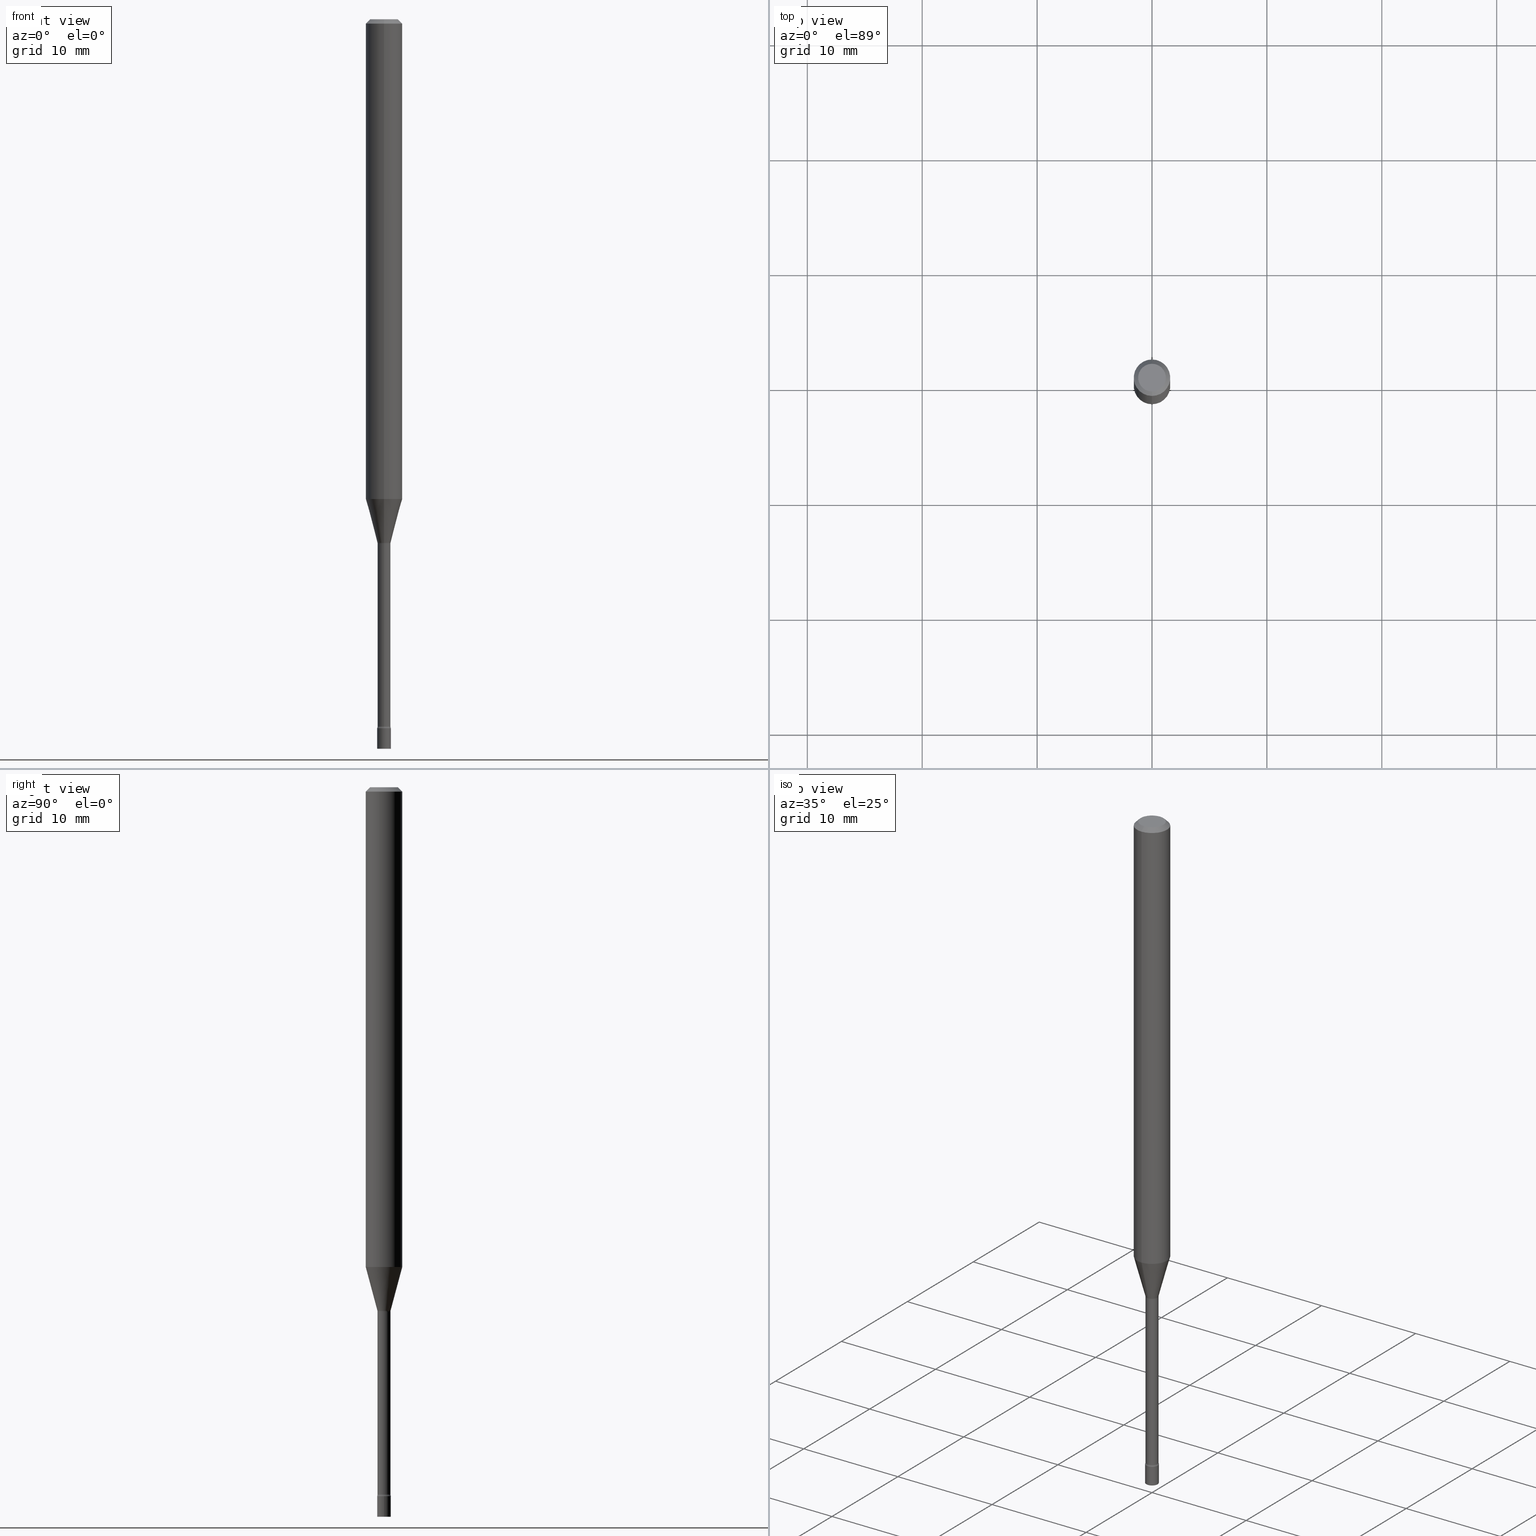
[diagram: canonical four-view strip — front | top / right | iso, engineering-drawing reading convention]
A machine part, canonical four-view strip (front | top / right | iso — engineering-drawing reading convention). The complete STEP part file that produces these views, byte-faithful:
ISO-10303-21;
HEADER;
FILE_DESCRIPTION (( 'STEP AP203' ),
    '1' );
FILE_NAME ('09659.STEP',
    '2024-03-09T00:29:46',
    ( '' ),
    ( '' ),
    'SwSTEP 2.0',
    'SolidWorks 2023',
    '' );
FILE_SCHEMA (( 'CONFIG_CONTROL_DESIGN' ));
ENDSEC;

DATA;
#1 = COORDINATED_UNIVERSAL_TIME_OFFSET ( 5, 0, .BEHIND. ) ;
#2 = VECTOR ( 'NONE', #230, 39.37007874015748143 ) ;
#3 = ADVANCED_FACE ( 'NONE', ( #182 ), #135, .F. ) ;
#4 = DIRECTION ( 'NONE',  ( -6.982962677686265922E-15, -1.000000000000000000, 4.370956789862821150E-15 ) ) ;
#5 = CARTESIAN_POINT ( 'NONE',  ( 1.640996229256866630E-16, 0.02349999999999152073, -2.429000000000000270 ) ) ;
#6 = LINE ( 'NONE', #171, #2 ) ;
#7 = ADVANCED_FACE ( 'NONE', ( #423 ), #511, .F. ) ;
#8 = DIRECTION ( 'NONE',  ( -2.445459864664737566E-29, 3.491494143609276784E-15, 1.000000000000000000 ) ) ;
#9 = CIRCLE ( 'NONE', #320, 0.02210000000000007098 ) ;
#10 = CONICAL_SURFACE ( 'NONE', #513, 0.02261111260566398690, 0.2617993877991501295 ) ;
#11 = LINE ( 'NONE', #492, #235 ) ;
#12 = EDGE_CURVE ( 'NONE', #20, #349, #79, .T. ) ;
#13 = CYLINDRICAL_SURFACE ( 'NONE', #325, 0.02210000000000003628 ) ;
#14 = DIRECTION ( 'NONE',  ( -6.982962677686265922E-15, -1.000000000000000000, 4.370956789862821150E-15 ) ) ;
#15 = EDGE_CURVE ( 'NONE', #486, #99, #35, .T. ) ;
#16 = ORIENTED_EDGE ( 'NONE', *, *, #15, .T. ) ;
#17 = PRODUCT_DEFINITION_FORMATION_WITH_SPECIFIED_SOURCE ( 'ANY', '', #117, .NOT_KNOWN. ) ;
#18 = FACE_OUTER_BOUND ( 'NONE', #132, .T. ) ;
#19 = ORIENTED_EDGE ( 'NONE', *, *, #440, .F. ) ;
#20 = VERTEX_POINT ( 'NONE', #520 ) ;
#21 = ORIENTED_EDGE ( 'NONE', *, *, #484, .F. ) ;
#22 = ADVANCED_FACE ( 'NONE', ( #73 ), #153, .T. ) ;
#23 = ORIENTED_EDGE ( 'NONE', *, *, #228, .T. ) ;
#24 = ORIENTED_EDGE ( 'NONE', *, *, #330, .T. ) ;
#25 = AXIS2_PLACEMENT_3D ( 'NONE', #260, #418, #94 ) ;
#26 = EDGE_LOOP ( 'NONE', ( #98, #220 ) ) ;
#27 = CARTESIAN_POINT ( 'NONE',  ( 4.384935746752060806E-29, -6.260571968939970846E-15, -1.793092501787273196 ) ) ;
#28 = ORIENTED_EDGE ( 'NONE', *, *, #224, .T. ) ;
#29 = CARTESIAN_POINT ( 'NONE',  ( 7.070632131136643894E-46, -1.009506270546119456E-31, -2.891330270147777573E-17 ) ) ;
#30 = MECHANICAL_CONTEXT ( 'NONE', #395, 'mechanical' ) ;
#31 = ORIENTED_EDGE ( 'NONE', *, *, #454, .T. ) ;
#32 = CIRCLE ( 'NONE', #424, 0.02350000000000000352 ) ;
#33 = CALENDAR_DATE ( 2024, 8, 3 ) ;
#34 = AXIS2_PLACEMENT_3D ( 'NONE', #29, #488, #165 ) ;
#35 = LINE ( 'NONE', #352, #380 ) ;
#36 = FACE_OUTER_BOUND ( 'NONE', #335, .T. ) ;
#37 = CARTESIAN_POINT ( 'NONE',  ( -1.543234751768225325E-16, -0.02210000000000627435, -1.796974787463811118 ) ) ;
#38 = EDGE_CURVE ( 'NONE', #419, #172, #105, .T. ) ;
#39 = SHAPE_DEFINITION_REPRESENTATION ( #279, #376 ) ;
#40 = CARTESIAN_POINT ( 'NONE',  ( 6.113672015462842613E-29, -8.728703347107864943E-15, -2.500000000000000000 ) ) ;
#41 = ORGANIZATION ( 'UNSPECIFIED', 'UNSPECIFIED', '' ) ;
#42 = DIRECTION ( 'NONE',  ( -6.982962677686265922E-15, -1.000000000000000000, 3.491494143609276784E-15 ) ) ;
#43 = CARTESIAN_POINT ( 'NONE',  ( 5.924547833782153992E-29, -8.458746088650004538E-15, -2.422672283192177645 ) ) ;
#44 = PERSON_AND_ORGANIZATION_ROLE ( 'design_supplier' ) ;
#45 = DIRECTION ( 'NONE',  ( 1.000000000000000000, -6.982962677686265922E-15, 4.876176775795935793E-29 ) ) ;
#46 = CARTESIAN_POINT ( 'NONE',  ( 5.940043730223697314E-29, -8.480808172050001970E-15, -2.429000000000000270 ) ) ;
#47 = CARTESIAN_POINT ( 'NONE',  ( 0.02350000000000000352, -1.640996229256272766E-16, 1.145901542312045115E-30 ) ) ;
#48 = ADVANCED_FACE ( 'NONE', ( #361 ), #283, .F. ) ;
#49 = LINE ( 'NONE', #47, #393 ) ;
#50 = AXIS2_PLACEMENT_3D ( 'NONE', #446, #8, #173 ) ;
#51 = CC_DESIGN_APPROVAL ( #377, ( #445 ) ) ;
#52 = DIRECTION ( 'NONE',  ( -6.982962677686265922E-15, -1.000000000000000000, 3.491494143609276784E-15 ) ) ;
#53 = DIRECTION ( 'NONE',  ( -6.982962677686265922E-15, -1.000000000000000000, 3.491494143609276784E-15 ) ) ;
#54 = DIRECTION ( 'NONE',  ( 2.445459864664737566E-29, -3.491494143609276784E-15, -1.000000000000000000 ) ) ;
#55 = AXIS2_PLACEMENT_3D ( 'NONE', #274, #280, #362 ) ;
#56 = VERTEX_POINT ( 'NONE', #238 ) ;
#57 = AXIS2_PLACEMENT_3D ( 'NONE', #430, #149, #268 ) ;
#58 = EDGE_CURVE ( 'NONE', #378, #96, #504, .T. ) ;
#59 = EDGE_LOOP ( 'NONE', ( #133, #259, #267, #294 ) ) ;
#60 = CARTESIAN_POINT ( 'NONE',  ( 4.394445788243915811E-29, -6.274103936801524027E-15, -1.796974787463811118 ) ) ;
#61 = DIRECTION ( 'NONE',  ( -6.982962677686265133E-15, -1.000000000000000000, 0.000000000000000000 ) ) ;
#62 = DIRECTION ( 'NONE',  ( -6.982962677686265922E-15, -1.000000000000000000, 3.491494143609276784E-15 ) ) ;
#63 = VERTEX_POINT ( 'NONE', #438 ) ;
#64 = DIRECTION ( 'NONE',  ( -2.445459864664737566E-29, 3.491494143609276784E-15, 1.000000000000000000 ) ) ;
#65 = ADVANCED_FACE ( 'NONE', ( #203 ), #318, .T. ) ;
#66 = ORIENTED_EDGE ( 'NONE', *, *, #397, .T. ) ;
#67 = CARTESIAN_POINT ( 'NONE',  ( 1.669775429036828812E-16, 0.02349999999999151726, -2.429000000000000270 ) ) ;
#68 = DIMENSIONAL_EXPONENTS ( 1.000000000000000000, 0.000000000000000000, 0.000000000000000000, 0.000000000000000000, 0.000000000000000000, 0.000000000000000000, 0.000000000000000000 ) ;
#69 = ORIENTED_EDGE ( 'NONE', *, *, #345, .T. ) ;
#70 = AXIS2_PLACEMENT_3D ( 'NONE', #100, #144, #139 ) ;
#71 = COORDINATED_UNIVERSAL_TIME_OFFSET ( 5, 0, .BEHIND. ) ;
#72 = AXIS2_PLACEMENT_3D ( 'NONE', #307, #470, #104 ) ;
#73 = FACE_OUTER_BOUND ( 'NONE', #502, .T. ) ;
#74 = EDGE_CURVE ( 'NONE', #141, #101, #95, .T. ) ;
#75 = CARTESIAN_POINT ( 'NONE',  ( 0.02350000000000000352, -8.892802970033491011E-15, -2.500000000000000000 ) ) ;
#76 = APPROVAL_ROLE ( '' ) ;
#77 = CARTESIAN_POINT ( 'NONE',  ( -0.02350000000000000352, 1.669775429036235687E-16, -1.155949746209903035E-30 ) ) ;
#78 = DIRECTION ( 'NONE',  ( -6.982962677686265922E-15, -1.000000000000000000, 3.491494143609276784E-15 ) ) ;
#79 = CIRCLE ( 'NONE', #460, 0.01499999999999999424 ) ;
#80 = CIRCLE ( 'NONE', #411, 0.02210000000000000159 ) ;
#81 = CARTESIAN_POINT ( 'NONE',  ( 4.440892098500625669E-16, 0.06250000000000000000, -2.182183839755797990E-16 ) ) ;
#82 = APPROVAL ( #321, 'UNSPECIFIED' ) ;
#83 = DIRECTION ( 'NONE',  ( 6.982962677686265922E-15, 1.000000000000000000, -3.491494143609276390E-15 ) ) ;
#84 = DIRECTION ( 'NONE',  ( 1.000000000000000000, -6.982962677686228056E-15, 0.000000000000000000 ) ) ;
#85 = CARTESIAN_POINT ( 'NONE',  ( -0.02350000000000000352, -8.437778216675308581E-15, -2.500000000000000000 ) ) ;
#86 = CARTESIAN_POINT ( 'NONE',  ( -4.364351673553916201E-16, -0.06250000000000000000, 2.182183839755797990E-16 ) ) ;
#87 = AXIS2_PLACEMENT_3D ( 'NONE', #60, #186, #482 ) ;
#88 = DIRECTION ( 'NONE',  ( -4.851104656540964275E-15, -0.7071067811865500152, -0.7071067811865450192 ) ) ;
#89 = DIRECTION ( 'NONE',  ( 1.000000000000000000, -7.105427357601001070E-15, 4.926315665355240651E-29 ) ) ;
#90 = ORIENTED_EDGE ( 'NONE', *, *, #134, .T. ) ;
#91 = ADVANCED_FACE ( 'NONE', ( #195 ), #485, .T. ) ;
#92 = DIRECTION ( 'NONE',  ( -2.445459864664737566E-29, 3.491494143609276784E-15, 1.000000000000000000 ) ) ;
#93 = VERTEX_POINT ( 'NONE', #317 ) ;
#94 = DIRECTION ( 'NONE',  ( 1.000000000000000000, -6.982962677686228056E-15, 0.000000000000000000 ) ) ;
#95 = CIRCLE ( 'NONE', #371, 0.02210000000000000159 ) ;
#96 = VERTEX_POINT ( 'NONE', #236 ) ;
#97 = CIRCLE ( 'NONE', #25, 0.02350000000000000352 ) ;
#98 = ORIENTED_EDGE ( 'NONE', *, *, #311, .F. ) ;
#99 = VERTEX_POINT ( 'NONE', #396 ) ;
#100 = CARTESIAN_POINT ( 'NONE',  ( 7.070632131136643894E-46, -1.009506270546119456E-31, -2.891330270147777573E-17 ) ) ;
#101 = VERTEX_POINT ( 'NONE', #37 ) ;
#102 = DIRECTION ( 'NONE',  ( -2.445459864664737566E-29, 3.491494143609276784E-15, 1.000000000000000000 ) ) ;
#103 = ORIENTED_EDGE ( 'NONE', *, *, #134, .F. ) ;
#104 = DIRECTION ( 'NONE',  ( -6.982962677686265133E-15, -1.000000000000000000, 0.000000000000000000 ) ) ;
#105 = CIRCLE ( 'NONE', #297, 0.02350000000000000352 ) ;
#106 = CIRCLE ( 'NONE', #365, 0.02350000000000000352 ) ;
#107 = APPLICATION_PROTOCOL_DEFINITION ( 'international standard', 'config_control_design', 1994, #395 ) ;
#108 = ORIENTED_EDGE ( 'NONE', *, *, #392, .F. ) ;
#109 = CYLINDRICAL_SURFACE ( 'NONE', #348, 0.02350000000000000352 ) ;
#110 = ORIENTED_EDGE ( 'NONE', *, *, #360, .T. ) ;
#111 = APPROVAL_STATUS ( 'not_yet_approved' ) ;
#112 = CARTESIAN_POINT ( 'NONE',  ( 0.000000000000000000, 0.000000000000000000, 0.000000000000000000 ) ) ;
#113 = AXIS2_PLACEMENT_3D ( 'NONE', #247, #125, #14 ) ;
#114 = DATE_AND_TIME ( #33, #217 ) ;
#115 = EDGE_CURVE ( 'NONE', #56, #486, #451, .T. ) ;
#116 = CARTESIAN_POINT ( 'NONE',  ( 4.394429720557197382E-29, -6.274126946643421115E-15, -1.796974787463811118 ) ) ;
#117 = PRODUCT ( '09659', '09659', '', ( #30 ) ) ;
#118 = APPROVAL_ROLE ( '' ) ;
#119 = DIRECTION ( 'NONE',  ( -1.000000000000000000, 6.982962677686265922E-15, -4.883557194083112340E-29 ) ) ;
#120 = AXIS2_PLACEMENT_3D ( 'NONE', #245, #200, #4 ) ;
#121 = CONICAL_SURFACE ( 'NONE', #242, 0.06250000000000000000, 0.7853981633974483900 ) ;
#122 = DIRECTION ( 'NONE',  ( -2.445459864664737566E-29, 3.491494143609276784E-15, 1.000000000000000000 ) ) ;
#123 = DIRECTION ( 'NONE',  ( -2.445459864664737566E-29, 3.491494143609276784E-15, 1.000000000000000000 ) ) ;
#124 = LINE ( 'NONE', #450, #309 ) ;
#125 = DIRECTION ( 'NONE',  ( -2.445459864664737566E-29, 3.491494143609276784E-15, 1.000000000000000000 ) ) ;
#126 = VECTOR ( 'NONE', #398, 39.37007874015748143 ) ;
#127 = EDGE_CURVE ( 'NONE', #419, #468, #439, .T. ) ;
#128 = ORIENTED_EDGE ( 'NONE', *, *, #12, .T. ) ;
#129 = DIRECTION ( 'NONE',  ( 1.000000000000000000, -6.982962677686269866E-15, 0.000000000000000000 ) ) ;
#130 = CARTESIAN_POINT ( 'NONE',  ( 0.000000000000000000, 0.000000000000000000, 0.000000000000000000 ) ) ;
#131 = EDGE_CURVE ( 'NONE', #510, #96, #443, .T. ) ;
#132 = EDGE_LOOP ( 'NONE', ( #314, #138, #192, #108 ) ) ;
#133 = ORIENTED_EDGE ( 'NONE', *, *, #330, .F. ) ;
#134 = EDGE_CURVE ( 'NONE', #99, #510, #241, .T. ) ;
#135 = TOROIDAL_SURFACE ( 'NONE', #87, 0.03710000000000000103, 0.01500000000000002373 ) ;
#136 = CIRCLE ( 'NONE', #70, 0.04749999999999999362 ) ;
#137 = ORIENTED_EDGE ( 'NONE', *, *, #127, .T. ) ;
#138 = ORIENTED_EDGE ( 'NONE', *, *, #431, .T. ) ;
#139 = DIRECTION ( 'NONE',  ( -6.982962677686266711E-15, -1.000000000000000000, 3.491494143609277179E-15 ) ) ;
#140 =( NAMED_UNIT ( * ) PLANE_ANGLE_UNIT ( ) SI_UNIT ( $, .RADIAN. ) );
#141 = VERTEX_POINT ( 'NONE', #158 ) ;
#142 = CARTESIAN_POINT ( 'NONE',  ( 4.364351673553919652E-16, 0.06249999999999995143, -0.01500000000000024751 ) ) ;
#143 = DIRECTION ( 'NONE',  ( -2.445459864664737566E-29, 3.491494143609276784E-15, 1.000000000000000000 ) ) ;
#144 = DIRECTION ( 'NONE',  ( -2.445459864664737566E-29, 3.491494143609276784E-15, 1.000000000000000000 ) ) ;
#145 = AXIS2_PLACEMENT_3D ( 'NONE', #442, #355, #42 ) ;
#146 = AXIS2_PLACEMENT_3D ( 'NONE', #27, #315, #187 ) ;
#147 = APPROVAL_PERSON_ORGANIZATION ( #428, #363, #278 ) ;
#148 = ORIENTED_EDGE ( 'NONE', *, *, #392, .T. ) ;
#149 = DIRECTION ( 'NONE',  ( -2.445468806185136597E-29, 3.491481338843145583E-15, 1.000000000000000000 ) ) ;
#150 = EDGE_CURVE ( 'NONE', #459, #63, #416, .T. ) ;
#151 = PERSON_AND_ORGANIZATION_ROLE ( 'creator' ) ;
#152 = DIRECTION ( 'NONE',  ( 7.105427357601001859E-15, 1.000000000000000000, 0.000000000000000000 ) ) ;
#153 = CYLINDRICAL_SURFACE ( 'NONE', #154, 0.02210000000000003628 ) ;
#154 = AXIS2_PLACEMENT_3D ( 'NONE', #112, #122, #78 ) ;
#155 = AXIS2_PLACEMENT_3D ( 'NONE', #130, #123, #52 ) ;
#156 = CALENDAR_DATE ( 2024, 8, 3 ) ;
#157 = CC_DESIGN_SECURITY_CLASSIFICATION ( #445, ( #17 ) ) ;
#158 = CARTESIAN_POINT ( 'NONE',  ( 1.570299446030415881E-16, 0.02209999999999372536, -1.796974787463811118 ) ) ;
#159 = APPROVAL_STATUS ( 'not_yet_approved' ) ;
#160 = DIRECTION ( 'NONE',  ( -2.445468806185136597E-29, 3.491481338843145583E-15, 1.000000000000000000 ) ) ;
#161 = CARTESIAN_POINT ( 'NONE',  ( 2.636113549670568339E-16, 0.03709999999999160497, -2.422672283192177645 ) ) ;
#162 = CARTESIAN_POINT ( 'NONE',  ( 4.384935746752060806E-29, -6.260571968939970846E-15, -1.793092501787273196 ) ) ;
#163 = AXIS2_PLACEMENT_3D ( 'NONE', #292, #89, #252 ) ;
#164 = DIRECTION ( 'NONE',  ( 2.438088387897960049E-29, -3.491481338843145188E-15, -1.000000000000000000 ) ) ;
#165 = DIRECTION ( 'NONE',  ( -6.982962677686266711E-15, -1.000000000000000000, 3.491494143609277179E-15 ) ) ;
#166 = EDGE_CURVE ( 'NONE', #20, #141, #6, .T. ) ;
#167 = CARTESIAN_POINT ( 'NONE',  ( -1.578925554262692203E-16, -0.02261111260567024925, -1.793092501787273196 ) ) ;
#168 = CARTESIAN_POINT ( 'NONE',  ( 0.000000000000000000, 0.000000000000000000, 0.000000000000000000 ) ) ;
#169 = ORIENTED_EDGE ( 'NONE', *, *, #38, .F. ) ;
#170 = FACE_OUTER_BOUND ( 'NONE', #343, .T. ) ;
#171 = CARTESIAN_POINT ( 'NONE',  ( 1.570299446029823742E-16, 0.02210000000000003628, -7.716202057376514729E-17 ) ) ;
#172 = VERTEX_POINT ( 'NONE', #75 ) ;
#173 = DIRECTION ( 'NONE',  ( -6.982962677686265922E-15, -1.000000000000000000, 3.483106191921935554E-15 ) ) ;
#174 = ORIENTED_EDGE ( 'NONE', *, *, #216, .F. ) ;
#175 = CC_DESIGN_DATE_AND_TIME_ASSIGNMENT ( #441, #269, ( #476 ) ) ;
#176 = MANIFOLD_SOLID_BREP ( 'Body-Move/Copy2[2]', #401 ) ;
#177 = APPLICATION_CONTEXT ( 'configuration controlled 3d designs of mechanical parts and assemblies' ) ;
#178 = EDGE_LOOP ( 'NONE', ( #69, #306, #253, #21 ) ) ;
#179 = ORIENTED_EDGE ( 'NONE', *, *, #246, .F. ) ;
#180 =( LENGTH_UNIT ( ) NAMED_UNIT ( * ) SI_UNIT ( $, .METRE. ) );
#181 = AXIS2_PLACEMENT_3D ( 'NONE', #413, #54, #285 ) ;
#182 = FACE_OUTER_BOUND ( 'NONE', #255, .T. ) ;
#183 = ORIENTED_EDGE ( 'NONE', *, *, #150, .T. ) ;
#184 = CARTESIAN_POINT ( 'NONE',  ( 5.940022011270647175E-29, -8.480839274826933485E-15, -2.429000000000000270 ) ) ;
#185 = EDGE_LOOP ( 'NONE', ( #90, #223, #474, #19 ) ) ;
#186 = DIRECTION ( 'NONE',  ( -2.445459864664737566E-29, 3.491494143609276784E-15, 1.000000000000000000 ) ) ;
#187 = DIRECTION ( 'NONE',  ( -6.982962677686265922E-15, -1.000000000000000000, 0.000000000000000000 ) ) ;
#188 =( CONVERSION_BASED_UNIT ( 'INCH', #340 ) LENGTH_UNIT ( ) NAMED_UNIT ( #68 ) );
#189 = EDGE_CURVE ( 'NONE', #93, #378, #191, .T. ) ;
#190 = ORIENTED_EDGE ( 'NONE', *, *, #431, .F. ) ;
#191 = LINE ( 'NONE', #249, #256 ) ;
#192 = ORIENTED_EDGE ( 'NONE', *, *, #440, .T. ) ;
#193 = AXIS2_PLACEMENT_3D ( 'NONE', #322, #119, #277 ) ;
#194 = PERSON_AND_ORGANIZATION ( #422, #41 ) ;
#195 = FACE_OUTER_BOUND ( 'NONE', #185, .T. ) ;
#196 = DIRECTION ( 'NONE',  ( -6.982962677686265922E-15, -1.000000000000000000, 0.000000000000000000 ) ) ;
#197 = PRODUCT_RELATED_PRODUCT_CATEGORY ( 'detail', '', ( #117 ) ) ;
#198 = DIRECTION ( 'NONE',  ( -2.445468806185136597E-29, 3.491481338843145583E-15, 1.000000000000000000 ) ) ;
#199 = EDGE_CURVE ( 'NONE', #468, #389, #32, .T. ) ;
#200 = DIRECTION ( 'NONE',  ( -2.445459864664737566E-29, 3.491494143609276784E-15, 1.000000000000000000 ) ) ;
#201 = AXIS2_PLACEMENT_3D ( 'NONE', #494, #92, #53 ) ;
#202 = PERSON_AND_ORGANIZATION_ROLE ( 'classification_officer' ) ;
#203 = FACE_OUTER_BOUND ( 'NONE', #415, .T. ) ;
#204 = COORDINATED_UNIVERSAL_TIME_OFFSET ( 5, 0, .BEHIND. ) ;
#205 = CARTESIAN_POINT ( 'NONE',  ( 0.000000000000000000, 0.000000000000000000, 0.000000000000000000 ) ) ;
#206 = DIRECTION ( 'NONE',  ( -2.445459864664737566E-29, 3.491494143609276784E-15, 1.000000000000000000 ) ) ;
#207 = CIRCLE ( 'NONE', #300, 0.02350000000000000352 ) ;
#208 = CARTESIAN_POINT ( 'NONE',  ( 1.640996229256884133E-16, 0.02349999999999127440, -2.500000000000000000 ) ) ;
#209 = DIRECTION ( 'NONE',  ( -6.982962677686263555E-15, -1.000000000000000000, 0.000000000000000000 ) ) ;
#210 = ADVANCED_FACE ( 'NONE', ( #291 ), #10, .T. ) ;
#211 = CYLINDRICAL_SURFACE ( 'NONE', #155, 0.06250000000000000000 ) ;
#212 = DESIGN_CONTEXT ( 'detailed design', #177, 'design' ) ;
#213 = ORIENTED_EDGE ( 'NONE', *, *, #12, .F. ) ;
#214 = FACE_OUTER_BOUND ( 'NONE', #472, .T. ) ;
#215 = AXIS2_PLACEMENT_3D ( 'NONE', #447, #160, #45 ) ;
#216 = EDGE_CURVE ( 'NONE', #20, #459, #9, .T. ) ;
#217 = LOCAL_TIME ( 19, 29, 46.00000000000000000, #519 ) ;
#218 = ORIENTED_EDGE ( 'NONE', *, *, #150, .F. ) ;
#219 = ORIENTED_EDGE ( 'NONE', *, *, #199, .F. ) ;
#220 = ORIENTED_EDGE ( 'NONE', *, *, #224, .F. ) ;
#221 = ORIENTED_EDGE ( 'NONE', *, *, #228, .F. ) ;
#222 = FACE_OUTER_BOUND ( 'NONE', #498, .T. ) ;
#223 = ORIENTED_EDGE ( 'NONE', *, *, #131, .T. ) ;
#224 = EDGE_CURVE ( 'NONE', #349, #63, #207, .T. ) ;
#225 = VECTOR ( 'NONE', #489, 39.37007874015748143 ) ;
#226 = ORIENTED_EDGE ( 'NONE', *, *, #216, .T. ) ;
#227 = DIRECTION ( 'NONE',  ( -2.445459864664737566E-29, 3.491494143609276784E-15, 1.000000000000000000 ) ) ;
#228 = EDGE_CURVE ( 'NONE', #389, #468, #435, .T. ) ;
#229 = CARTESIAN_POINT ( 'NONE',  ( 5.940043730223697314E-29, -8.480808172050001970E-15, -2.429000000000000270 ) ) ;
#230 = DIRECTION ( 'NONE',  ( -2.445459864664737566E-29, 3.491494143609276390E-15, 1.000000000000000000 ) ) ;
#231 = DATE_AND_TIME ( #512, #273 ) ;
#232 = ORIENTED_EDGE ( 'NONE', *, *, #484, .T. ) ;
#233 = EDGE_CURVE ( 'NONE', #313, #96, #350, .T. ) ;
#234 = ORIENTED_EDGE ( 'NONE', *, *, #199, .T. ) ;
#235 = VECTOR ( 'NONE', #336, 39.37007874015748143 ) ;
#236 = CARTESIAN_POINT ( 'NONE',  ( 4.440892098501030453E-16, 0.06249999999999995143, -0.01500000000000024751 ) ) ;
#237 = PERSON_AND_ORGANIZATION ( #422, #41 ) ;
#238 = CARTESIAN_POINT ( 'NONE',  ( 3.023754139721142721E-16, 0.02261111260565773148, -1.793092501787273196 ) ) ;
#239 = DATE_AND_TIME ( #356, #383 ) ;
#240 = DIRECTION ( 'NONE',  ( -2.445459864664737566E-29, 3.491494143609276784E-15, 1.000000000000000000 ) ) ;
#241 = CIRCLE ( 'NONE', #120, 0.06250000000000000000 ) ;
#242 = AXIS2_PLACEMENT_3D ( 'NONE', #493, #409, #329 ) ;
#243 = COORDINATED_UNIVERSAL_TIME_OFFSET ( 5, 0, .BEHIND. ) ;
#244 = APPROVAL_PERSON_ORGANIZATION ( #477, #377, #118 ) ;
#245 = CARTESIAN_POINT ( 'NONE',  ( 4.020886606376113285E-29, -5.740802472832181902E-15, -1.644225147374217988 ) ) ;
#246 = EDGE_CURVE ( 'NONE', #486, #56, #257, .T. ) ;
#247 = CARTESIAN_POINT ( 'NONE',  ( 4.020886606376113285E-29, -5.740802472832181902E-15, -1.644225147374217988 ) ) ;
#248 = CARTESIAN_POINT ( 'NONE',  ( -0.02350000000000000352, -8.437778216675308581E-15, -2.429000000000000270 ) ) ;
#249 = CARTESIAN_POINT ( 'NONE',  ( -4.287811248607203282E-16, -0.06250000000000005551, -0.01499999999999981209 ) ) ;
#250 = CIRCLE ( 'NONE', #287, 0.01500000000000002720 ) ;
#251 = CARTESIAN_POINT ( 'NONE',  ( 0.02350000000000000352, -8.644907794975628038E-15, -2.429000000000000270 ) ) ;
#252 = DIRECTION ( 'NONE',  ( 7.105427357600997914E-15, 1.000000000000000000, 0.000000000000000000 ) ) ;
#253 = ORIENTED_EDGE ( 'NONE', *, *, #454, .F. ) ;
#254 = DIRECTION ( 'NONE',  ( -2.445459864664737566E-29, 3.491494143609276390E-15, 1.000000000000000000 ) ) ;
#255 = EDGE_LOOP ( 'NONE', ( #310, #302, #515, #346 ) ) ;
#256 = VECTOR ( 'NONE', #88, 39.37007874015748143 ) ;
#257 = CIRCLE ( 'NONE', #146, 0.02261111260566398690 ) ;
#258 = EDGE_LOOP ( 'NONE', ( #174, #128, #28, #218 ) ) ;
#259 = ORIENTED_EDGE ( 'NONE', *, *, #189, .T. ) ;
#260 = CARTESIAN_POINT ( 'NONE',  ( 6.113672015462842613E-29, -8.728703347107864943E-15, -2.500000000000000000 ) ) ;
#261 = ORIENTED_EDGE ( 'NONE', *, *, #127, .F. ) ;
#262 = FACE_OUTER_BOUND ( 'NONE', #337, .T. ) ;
#263 = PERSON_AND_ORGANIZATION ( #422, #41 ) ;
#264 = ORIENTED_EDGE ( 'NONE', *, *, #491, .T. ) ;
#265 = CC_DESIGN_PERSON_AND_ORGANIZATION_ASSIGNMENT ( #237, #479, ( #476 ) ) ;
#266 = ORIENTED_EDGE ( 'NONE', *, *, #397, .F. ) ;
#267 = ORIENTED_EDGE ( 'NONE', *, *, #58, .T. ) ;
#268 = DIRECTION ( 'NONE',  ( 1.000000000000000000, -6.982962677686269866E-15, 0.000000000000000000 ) ) ;
#269 = DATE_TIME_ROLE ( 'creation_date' ) ;
#270 = CARTESIAN_POINT ( 'NONE',  ( -4.364351673553912750E-16, -0.06250000000000005551, -0.01499999999999981209 ) ) ;
#271 = DIRECTION ( 'NONE',  ( -2.445459864664737566E-29, 3.491494143609276390E-15, 1.000000000000000000 ) ) ;
#272 = TOROIDAL_SURFACE ( 'NONE', #201, 0.03710000000000006348, 0.01499999999999999424 ) ;
#273 = LOCAL_TIME ( 19, 29, 46.00000000000000000, #204 ) ;
#274 = CARTESIAN_POINT ( 'NONE',  ( 4.384935746752060806E-29, -6.260571968939970846E-15, -1.793092501787273196 ) ) ;
#275 = CC_DESIGN_PERSON_AND_ORGANIZATION_ASSIGNMENT ( #351, #202, ( #445 ) ) ;
#276 = APPROVAL_DATE_TIME ( #114, #377 ) ;
#277 = DIRECTION ( 'NONE',  ( -6.982962677686265133E-15, -1.000000000000000000, 0.000000000000000000 ) ) ;
#278 = APPROVAL_ROLE ( '' ) ;
#279 = PRODUCT_DEFINITION_SHAPE ( 'NONE', 'NONE',  #476 ) ;
#280 = DIRECTION ( 'NONE',  ( -2.445459864664737566E-29, 3.491494143609276784E-15, 1.000000000000000000 ) ) ;
#281 = CIRCLE ( 'NONE', #113, 0.06250000000000000000 ) ;
#282 = DIRECTION ( 'NONE',  ( -6.982962677686265922E-15, -1.000000000000000000, 0.000000000000000000 ) ) ;
#283 = PLANE ( 'NONE',  #339 ) ;
#284 = DIRECTION ( 'NONE',  ( 2.445459864664737566E-29, -3.491494143609276390E-15, -1.000000000000000000 ) ) ;
#285 = DIRECTION ( 'NONE',  ( 6.982962677686265922E-15, 1.000000000000000000, -3.483106191921935554E-15 ) ) ;
#286 = ORIENTED_EDGE ( 'NONE', *, *, #166, .F. ) ;
#287 = AXIS2_PLACEMENT_3D ( 'NONE', #328, #500, #209 ) ;
#288 = DIRECTION ( 'NONE',  ( 1.839019923739599526E-15, 0.2588190451025248473, 0.9659258262890673130 ) ) ;
#289 = ADVANCED_FACE ( 'NONE', ( #347 ), #466, .T. ) ;
#290 = ORIENTED_EDGE ( 'NONE', *, *, #246, .T. ) ;
#291 = FACE_OUTER_BOUND ( 'NONE', #465, .T. ) ;
#292 = CARTESIAN_POINT ( 'NONE',  ( 2.636113549670411060E-16, 0.03709999999999372827, -1.796974787463811118 ) ) ;
#293 = ORIENTED_EDGE ( 'NONE', *, *, #509, .T. ) ;
#294 = ORIENTED_EDGE ( 'NONE', *, *, #233, .F. ) ;
#295 = DIRECTION ( 'NONE',  ( -2.445459864664737566E-29, 3.491494143609276784E-15, 1.000000000000000000 ) ) ;
#296 = ADVANCED_FACE ( 'NONE', ( #36 ), #109, .T. ) ;
#297 = AXIS2_PLACEMENT_3D ( 'NONE', #40, #198, #84 ) ;
#298 = PERSON_AND_ORGANIZATION_ROLE ( 'design_owner' ) ;
#299 = TOROIDAL_SURFACE ( 'NONE', #358, 0.03710000000000006348, 0.01499999999999999424 ) ;
#300 = AXIS2_PLACEMENT_3D ( 'NONE', #184, #227, #304 ) ;
#301 = ORIENTED_EDGE ( 'NONE', *, *, #311, .T. ) ;
#302 = ORIENTED_EDGE ( 'NONE', *, *, #449, .T. ) ;
#303 = CC_DESIGN_PERSON_AND_ORGANIZATION_ASSIGNMENT ( #483, #44, ( #17 ) ) ;
#304 = DIRECTION ( 'NONE',  ( -6.982962677686265922E-15, -1.000000000000000000, 0.000000000000000000 ) ) ;
#305 =( NAMED_UNIT ( * ) SI_UNIT ( $, .STERADIAN. ) SOLID_ANGLE_UNIT ( ) );
#306 = ORIENTED_EDGE ( 'NONE', *, *, #166, .T. ) ;
#307 = CARTESIAN_POINT ( 'NONE',  ( 5.924547833782153992E-29, -8.458746088650004538E-15, -2.422672283192177645 ) ) ;
#308 = DIRECTION ( 'NONE',  ( 1.000000000000000000, 0.000000000000000000, 0.000000000000000000 ) ) ;
#309 = VECTOR ( 'NONE', #288, 39.37007874015747433 ) ;
#310 = ORIENTED_EDGE ( 'NONE', *, *, #115, .F. ) ;
#311 = EDGE_CURVE ( 'NONE', #63, #349, #106, .T. ) ;
#312 = DATE_AND_TIME ( #517, #332 ) ;
#313 = VERTEX_POINT ( 'NONE', #508 ) ;
#314 = ORIENTED_EDGE ( 'NONE', *, *, #131, .F. ) ;
#315 = DIRECTION ( 'NONE',  ( -2.445459864664737566E-29, 3.491494143609276784E-15, 1.000000000000000000 ) ) ;
#316 = DATE_TIME_ROLE ( 'classification_date' ) ;
#317 = CARTESIAN_POINT ( 'NONE',  ( -3.773273898774340269E-16, -0.04749999999999999362, 1.369326691199628481E-16 ) ) ;
#318 = CYLINDRICAL_SURFACE ( 'NONE', #215, 0.02350000000000000352 ) ;
#319 = CLOSED_SHELL ( 'NONE', ( #296, #289, #65, #480 ) ) ;
#320 = AXIS2_PLACEMENT_3D ( 'NONE', #43, #295, #61 ) ;
#321 = APPROVAL_STATUS ( 'not_yet_approved' ) ;
#322 = CARTESIAN_POINT ( 'NONE',  ( -2.590679153421016779E-16, -0.03710000000000852199, -2.422672283192177645 ) ) ;
#323 = DIRECTION ( 'NONE',  ( -1.807323732225328562E-15, -0.2588190451025179639, 0.9659258262890689783 ) ) ;
#324 = DIRECTION ( 'NONE',  ( -2.445459864664737566E-29, 3.491494143609276784E-15, 1.000000000000000000 ) ) ;
#325 = AXIS2_PLACEMENT_3D ( 'NONE', #168, #143, #62 ) ;
#326 = DIRECTION ( 'NONE',  ( -2.445459864664737566E-29, 3.491494143609276784E-15, 1.000000000000000000 ) ) ;
#327 = DIRECTION ( 'NONE',  ( -1.000000000000000000, 6.982962677686265922E-15, -4.876176775795935793E-29 ) ) ;
#328 = CARTESIAN_POINT ( 'NONE',  ( -2.590679153421165676E-16, -0.03710000000000628073, -1.796974787463811118 ) ) ;
#329 = DIRECTION ( 'NONE',  ( 6.982962677686265922E-15, 1.000000000000000000, -3.483106191921935554E-15 ) ) ;
#330 = EDGE_CURVE ( 'NONE', #93, #313, #136, .T. ) ;
#331 = AXIS2_PLACEMENT_3D ( 'NONE', #381, #501, #308 ) ;
#332 = LOCAL_TIME ( 19, 29, 46.00000000000000000, #71 ) ;
#333 = CARTESIAN_POINT ( 'NONE',  ( 3.316907271900976096E-16, 0.04749999999999999362, -1.803026231721795148E-16 ) ) ;
#334 = UNCERTAINTY_MEASURE_WITH_UNIT (LENGTH_MEASURE( 1.000000000000000082E-05 ), #188, 'distance_accuracy_value', 'NONE');
#335 = EDGE_LOOP ( 'NONE', ( #293, #137, #221, #387 ) ) ;
#336 = DIRECTION ( 'NONE',  ( -2.445459864664737566E-29, 3.491494143609276390E-15, 1.000000000000000000 ) ) ;
#337 = EDGE_LOOP ( 'NONE', ( #290, #66, #103, #503 ) ) ;
#338 = ORIENTED_EDGE ( 'NONE', *, *, #233, .T. ) ;
#339 = AXIS2_PLACEMENT_3D ( 'NONE', #5, #271, #406 ) ;
#340 = LENGTH_MEASURE_WITH_UNIT ( LENGTH_MEASURE( 0.02539999999999999897 ), #180 );
#341 = AXIS2_PLACEMENT_3D ( 'NONE', #333, #284, #83 ) ;
#342 = ORIENTED_EDGE ( 'NONE', *, *, #449, .F. ) ;
#343 = EDGE_LOOP ( 'NONE', ( #384, #169 ) ) ;
#344 = CARTESIAN_POINT ( 'NONE',  ( 0.000000000000000000, 0.000000000000000000, 0.000000000000000000 ) ) ;
#345 = EDGE_CURVE ( 'NONE', #459, #20, #505, .T. ) ;
#346 = ORIENTED_EDGE ( 'NONE', *, *, #491, .F. ) ;
#347 = FACE_OUTER_BOUND ( 'NONE', #429, .T. ) ;
#348 = AXIS2_PLACEMENT_3D ( 'NONE', #344, #421, #467 ) ;
#349 = VERTEX_POINT ( 'NONE', #67 ) ;
#350 = LINE ( 'NONE', #142, #372 ) ;
#351 = PERSON_AND_ORGANIZATION ( #422, #41 ) ;
#352 = CARTESIAN_POINT ( 'NONE',  ( -1.578925554262692203E-16, -0.02261111260567024925, -1.793092501787273196 ) ) ;
#353 = ADVANCED_FACE ( 'NONE', ( #262 ), #490, .T. ) ;
#354 = APPROVAL_DATE_TIME ( #239, #363 ) ;
#355 = DIRECTION ( 'NONE',  ( -2.445459864664737566E-29, 3.491494143609276784E-15, 1.000000000000000000 ) ) ;
#356 = CALENDAR_DATE ( 2024, 8, 3 ) ;
#357 = CARTESIAN_POINT ( 'NONE',  ( 3.668189796997113601E-31, -5.237241215413926147E-17, -0.01500000000000003067 ) ) ;
#358 = AXIS2_PLACEMENT_3D ( 'NONE', #433, #391, #448 ) ;
#359 = MANIFOLD_SOLID_BREP ( 'Body-Move/Copy2[1]', #319 ) ;
#360 = EDGE_CURVE ( 'NONE', #313, #93, #382, .T. ) ;
#361 = FACE_OUTER_BOUND ( 'NONE', #26, .T. ) ;
#362 = DIRECTION ( 'NONE',  ( -6.982962677686265922E-15, -1.000000000000000000, 0.000000000000000000 ) ) ;
#363 = APPROVAL ( #159, 'UNSPECIFIED' ) ;
#364 = LINE ( 'NONE', #86, #452 ) ;
#365 = AXIS2_PLACEMENT_3D ( 'NONE', #385, #102, #196 ) ;
#366 = FACE_OUTER_BOUND ( 'NONE', #258, .T. ) ;
#367 = CC_DESIGN_PERSON_AND_ORGANIZATION_ASSIGNMENT ( #399, #151, ( #17 ) ) ;
#368 = FACE_OUTER_BOUND ( 'NONE', #178, .T. ) ;
#369 = ADVANCED_FACE ( 'NONE', ( #222 ), #299, .F. ) ;
#370 = ORIENTED_EDGE ( 'NONE', *, *, #189, .F. ) ;
#371 = AXIS2_PLACEMENT_3D ( 'NONE', #116, #478, #400 ) ;
#372 = VECTOR ( 'NONE', #516, 39.37007874015748143 ) ;
#373 = LOCAL_TIME ( 19, 29, 46.00000000000000000, #1 ) ;
#374 = PLANE ( 'NONE',  #417 ) ;
#375 = ORIENTED_EDGE ( 'NONE', *, *, #115, .T. ) ;
#376 = ADVANCED_BREP_SHAPE_REPRESENTATION ( '09659', ( #359, #176, #331 ), #461 ) ;
#377 = APPROVAL ( #111, 'UNSPECIFIED' ) ;
#378 = VERTEX_POINT ( 'NONE', #270 ) ;
#379 = ADVANCED_FACE ( 'NONE', ( #18 ), #211, .T. ) ;
#380 = VECTOR ( 'NONE', #323, 39.37007874015749564 ) ;
#381 = CARTESIAN_POINT ( 'NONE',  ( 0.000000000000000000, 0.000000000000000000, 0.000000000000000000 ) ) ;
#382 = CIRCLE ( 'NONE', #34, 0.04749999999999999362 ) ;
#383 = LOCAL_TIME ( 19, 29, 46.00000000000000000, #243 ) ;
#384 = ORIENTED_EDGE ( 'NONE', *, *, #509, .F. ) ;
#385 = CARTESIAN_POINT ( 'NONE',  ( 5.940022011270647175E-29, -8.480839274826933485E-15, -2.429000000000000270 ) ) ;
#386 = ADVANCED_FACE ( 'NONE', ( #366 ), #272, .F. ) ;
#387 = ORIENTED_EDGE ( 'NONE', *, *, #436, .F. ) ;
#388 = DIRECTION ( 'NONE',  ( -6.982962677686265922E-15, -1.000000000000000000, 0.000000000000000000 ) ) ;
#389 = VERTEX_POINT ( 'NONE', #251 ) ;
#390 = AXIS2_PLACEMENT_3D ( 'NONE', #205, #240, #487 ) ;
#391 = DIRECTION ( 'NONE',  ( -2.445459864664737566E-29, 3.491494143609276784E-15, 1.000000000000000000 ) ) ;
#392 = EDGE_CURVE ( 'NONE', #96, #378, #481, .T. ) ;
#393 = VECTOR ( 'NONE', #453, 39.37007874015748143 ) ;
#394 = DIRECTION ( 'NONE',  ( 1.000000000000000000, -7.105427357601001070E-15, 4.926315665355240651E-29 ) ) ;
#395 = APPLICATION_CONTEXT ( 'configuration controlled 3d designs of mechanical parts and assemblies' ) ;
#396 = CARTESIAN_POINT ( 'NONE',  ( -4.364351673553515854E-16, -0.06250000000000575928, -1.644225147374217544 ) ) ;
#397 = EDGE_CURVE ( 'NONE', #56, #510, #124, .T. ) ;
#398 = DIRECTION ( 'NONE',  ( -2.445468806185136877E-29, 3.491481338843145188E-15, 1.000000000000000000 ) ) ;
#399 = PERSON_AND_ORGANIZATION ( #422, #41 ) ;
#400 = DIRECTION ( 'NONE',  ( -6.982962677686265922E-15, -1.000000000000000000, 0.000000000000000000 ) ) ;
#401 = CLOSED_SHELL ( 'NONE', ( #3, #499, #386, #462, #91, #353, #210, #379, #469, #405, #48, #369, #22, #7 ) ) ;
#402 = CIRCLE ( 'NONE', #163, 0.01500000000000002720 ) ;
#403 = DIRECTION ( 'NONE',  ( -6.982962677686265922E-15, -1.000000000000000000, 0.000000000000000000 ) ) ;
#404 = APPROVAL_DATE_TIME ( #312, #82 ) ;
#405 = ADVANCED_FACE ( 'NONE', ( #407 ), #497, .F. ) ;
#406 = DIRECTION ( 'NONE',  ( -6.982962677686265922E-15, -1.000000000000000000, 3.491494143609276390E-15 ) ) ;
#407 = FACE_OUTER_BOUND ( 'NONE', #457, .T. ) ;
#408 = ORIENTED_EDGE ( 'NONE', *, *, #345, .F. ) ;
#409 = DIRECTION ( 'NONE',  ( 2.445459864664737566E-29, -3.491494143609276784E-15, -1.000000000000000000 ) ) ;
#410 = CC_DESIGN_DATE_AND_TIME_ASSIGNMENT ( #231, #316, ( #445 ) ) ;
#411 = AXIS2_PLACEMENT_3D ( 'NONE', #412, #206, #282 ) ;
#412 = CARTESIAN_POINT ( 'NONE',  ( 4.394429720557197382E-29, -6.274126946643421115E-15, -1.796974787463811118 ) ) ;
#413 = CARTESIAN_POINT ( 'NONE',  ( 3.668189796997113601E-31, -5.237241215413926147E-17, -0.01500000000000003067 ) ) ;
#414 = FACE_OUTER_BOUND ( 'NONE', #59, .T. ) ;
#415 = EDGE_LOOP ( 'NONE', ( #261, #475, #420, #219 ) ) ;
#416 = CIRCLE ( 'NONE', #193, 0.01499999999999999424 ) ;
#417 = AXIS2_PLACEMENT_3D ( 'NONE', #208, #164, #327 ) ;
#418 = DIRECTION ( 'NONE',  ( -2.445468806185136597E-29, 3.491481338843145583E-15, 1.000000000000000000 ) ) ;
#419 = VERTEX_POINT ( 'NONE', #85 ) ;
#420 = ORIENTED_EDGE ( 'NONE', *, *, #436, .T. ) ;
#421 = DIRECTION ( 'NONE',  ( -2.445468806185136597E-29, 3.491481338843145583E-15, 1.000000000000000000 ) ) ;
#422 = PERSON ( 'UNSPECIFIED', 'UNSPECIFIED', 'UNSPECIFIED', ('UNSPECIFIED'), ('UNSPECIFIED'), ('UNSPECIFIED') ) ;
#423 = FACE_OUTER_BOUND ( 'NONE', #464, .T. ) ;
#424 = AXIS2_PLACEMENT_3D ( 'NONE', #46, #496, #129 ) ;
#425 = CARTESIAN_POINT ( 'NONE',  ( 4.440892098501025523E-16, 0.06249999999999423378, -1.644225147374218210 ) ) ;
#426 = AXIS2_PLACEMENT_3D ( 'NONE', #229, #473, #434 ) ;
#427 = CARTESIAN_POINT ( 'NONE',  ( 4.384935746752060806E-29, -6.260571968939970846E-15, -1.793092501787273196 ) ) ;
#428 = PERSON_AND_ORGANIZATION ( #422, #41 ) ;
#429 = EDGE_LOOP ( 'NONE', ( #23, #234 ) ) ;
#430 = CARTESIAN_POINT ( 'NONE',  ( 5.940043730223697314E-29, -8.480808172050001970E-15, -2.429000000000000270 ) ) ;
#431 = EDGE_CURVE ( 'NONE', #510, #99, #281, .T. ) ;
#432 = SECURITY_CLASSIFICATION_LEVEL ( 'unclassified' ) ;
#433 = CARTESIAN_POINT ( 'NONE',  ( 5.924569496155794395E-29, -8.458715066898005273E-15, -2.422672283192177645 ) ) ;
#434 = DIRECTION ( 'NONE',  ( 1.000000000000000000, -6.982962677686265922E-15, 4.876176775795935793E-29 ) ) ;
#435 = CIRCLE ( 'NONE', #57, 0.02350000000000000352 ) ;
#436 = EDGE_CURVE ( 'NONE', #172, #389, #49, .T. ) ;
#437 = APPROVAL_PERSON_ORGANIZATION ( #194, #82, #76 ) ;
#438 = CARTESIAN_POINT ( 'NONE',  ( -1.640996229255678655E-16, -0.02350000000000847938, -2.429000000000000270 ) ) ;
#439 = LINE ( 'NONE', #77, #126 ) ;
#440 = EDGE_CURVE ( 'NONE', #99, #378, #364, .T. ) ;
#441 = DATE_AND_TIME ( #156, #373 ) ;
#442 = CARTESIAN_POINT ( 'NONE',  ( 4.394445788243915811E-29, -6.274103936801524027E-15, -1.796974787463811118 ) ) ;
#443 = LINE ( 'NONE', #81, #225 ) ;
#444 = AXIS2_PLACEMENT_3D ( 'NONE', #427, #64, #388 ) ;
#445 = SECURITY_CLASSIFICATION ( '', '', #432 ) ;
#446 = CARTESIAN_POINT ( 'NONE',  ( 3.668189796997113601E-31, -5.237241215413926147E-17, -0.01500000000000003067 ) ) ;
#447 = CARTESIAN_POINT ( 'NONE',  ( 0.000000000000000000, 0.000000000000000000, 0.000000000000000000 ) ) ;
#448 = DIRECTION ( 'NONE',  ( -6.982962677686265922E-15, -1.000000000000000000, 3.491494143609276784E-15 ) ) ;
#449 = EDGE_CURVE ( 'NONE', #56, #141, #402, .T. ) ;
#450 = CARTESIAN_POINT ( 'NONE',  ( 1.606616180941255974E-16, 0.02261111260565772454, -1.793092501787273196 ) ) ;
#451 = CIRCLE ( 'NONE', #55, 0.02261111260566398690 ) ;
#452 = VECTOR ( 'NONE', #254, 39.37007874015748143 ) ;
#453 = DIRECTION ( 'NONE',  ( -2.445468806185136877E-29, 3.491481338843145188E-15, 1.000000000000000000 ) ) ;
#454 = EDGE_CURVE ( 'NONE', #101, #141, #80, .T. ) ;
#455 = ORIENTED_EDGE ( 'NONE', *, *, #74, .F. ) ;
#456 = CARTESIAN_POINT ( 'NONE',  ( -1.543234751768077413E-16, -0.02210000000000852949, -2.422672283192177645 ) ) ;
#457 = EDGE_LOOP ( 'NONE', ( #110, #24 ) ) ;
#458 = CC_DESIGN_PERSON_AND_ORGANIZATION_ASSIGNMENT ( #263, #298, ( #117 ) ) ;
#459 = VERTEX_POINT ( 'NONE', #456 ) ;
#460 = AXIS2_PLACEMENT_3D ( 'NONE', #161, #394, #152 ) ;
#461 =( GEOMETRIC_REPRESENTATION_CONTEXT ( 3 ) GLOBAL_UNCERTAINTY_ASSIGNED_CONTEXT ( ( #334 ) ) GLOBAL_UNIT_ASSIGNED_CONTEXT ( ( #188, #140, #305 ) ) REPRESENTATION_CONTEXT ( 'NONE', 'WORKASPACE' ) );
#462 = ADVANCED_FACE ( 'NONE', ( #414 ), #495, .T. ) ;
#463 = APPLICATION_PROTOCOL_DEFINITION ( 'international standard', 'config_control_design', 1994, #177 ) ;
#464 = EDGE_LOOP ( 'NONE', ( #342, #179, #264, #31 ) ) ;
#465 = EDGE_LOOP ( 'NONE', ( #266, #375, #16, #190 ) ) ;
#466 = PLANE ( 'NONE',  #426 ) ;
#467 = DIRECTION ( 'NONE',  ( 1.000000000000000000, -6.982962677686265922E-15, 4.876176775795935793E-29 ) ) ;
#468 = VERTEX_POINT ( 'NONE', #248 ) ;
#469 = ADVANCED_FACE ( 'NONE', ( #214 ), #121, .T. ) ;
#470 = DIRECTION ( 'NONE',  ( -2.445459864664737566E-29, 3.491494143609276784E-15, 1.000000000000000000 ) ) ;
#471 = AXIS2_PLACEMENT_3D ( 'NONE', #357, #324, #518 ) ;
#472 = EDGE_LOOP ( 'NONE', ( #370, #507, #338, #148 ) ) ;
#473 = DIRECTION ( 'NONE',  ( -2.438088387897960049E-29, 3.491481338843145188E-15, 1.000000000000000000 ) ) ;
#474 = ORIENTED_EDGE ( 'NONE', *, *, #58, .F. ) ;
#475 = ORIENTED_EDGE ( 'NONE', *, *, #38, .T. ) ;
#476 = PRODUCT_DEFINITION ( 'UNKNOWN', '', #17, #212 ) ;
#477 = PERSON_AND_ORGANIZATION ( #422, #41 ) ;
#478 = DIRECTION ( 'NONE',  ( -2.445459864664737566E-29, 3.491494143609276784E-15, 1.000000000000000000 ) ) ;
#479 = PERSON_AND_ORGANIZATION_ROLE ( 'creator' ) ;
#480 = ADVANCED_FACE ( 'NONE', ( #170 ), #374, .T. ) ;
#481 = CIRCLE ( 'NONE', #50, 0.06250000000000000000 ) ;
#482 = DIRECTION ( 'NONE',  ( -6.982962677686265922E-15, -1.000000000000000000, 3.491494143609276784E-15 ) ) ;
#483 = PERSON_AND_ORGANIZATION ( #422, #41 ) ;
#484 = EDGE_CURVE ( 'NONE', #459, #101, #11, .T. ) ;
#485 = CYLINDRICAL_SURFACE ( 'NONE', #390, 0.06250000000000000000 ) ;
#486 = VERTEX_POINT ( 'NONE', #167 ) ;
#487 = DIRECTION ( 'NONE',  ( -6.982962677686265922E-15, -1.000000000000000000, 3.491494143609276784E-15 ) ) ;
#488 = DIRECTION ( 'NONE',  ( -2.445459864664737566E-29, 3.491494143609276784E-15, 1.000000000000000000 ) ) ;
#489 = DIRECTION ( 'NONE',  ( -2.445459864664737566E-29, 3.491494143609276390E-15, 1.000000000000000000 ) ) ;
#490 = CONICAL_SURFACE ( 'NONE', #444, 0.02261111260566398690, 0.2617993877991501295 ) ;
#491 = EDGE_CURVE ( 'NONE', #486, #101, #250, .T. ) ;
#492 = CARTESIAN_POINT ( 'NONE',  ( -1.543234751768667333E-16, -0.02210000000000003628, 7.716202057376514729E-17 ) ) ;
#493 = CARTESIAN_POINT ( 'NONE',  ( 3.668189796997113601E-31, -5.237241215413926147E-17, -0.01500000000000003067 ) ) ;
#494 = CARTESIAN_POINT ( 'NONE',  ( 5.924569496155794395E-29, -8.458715066898005273E-15, -2.422672283192177645 ) ) ;
#495 = CONICAL_SURFACE ( 'NONE', #181, 0.06250000000000000000, 0.7853981633974483900 ) ;
#496 = DIRECTION ( 'NONE',  ( -2.445468806185136597E-29, 3.491481338843145583E-15, 1.000000000000000000 ) ) ;
#497 = PLANE ( 'NONE',  #341 ) ;
#498 = EDGE_LOOP ( 'NONE', ( #213, #408, #183, #301 ) ) ;
#499 = ADVANCED_FACE ( 'NONE', ( #368 ), #13, .T. ) ;
#500 = DIRECTION ( 'NONE',  ( -1.000000000000000000, 6.982962677686265922E-15, -4.883557194083112340E-29 ) ) ;
#501 = DIRECTION ( 'NONE',  ( 0.000000000000000000, 0.000000000000000000, 1.000000000000000000 ) ) ;
#502 = EDGE_LOOP ( 'NONE', ( #286, #226, #232, #455 ) ) ;
#503 = ORIENTED_EDGE ( 'NONE', *, *, #15, .F. ) ;
#504 = CIRCLE ( 'NONE', #471, 0.06250000000000000000 ) ;
#505 = CIRCLE ( 'NONE', #72, 0.02210000000000007098 ) ;
#506 = CC_DESIGN_APPROVAL ( #82, ( #17 ) ) ;
#507 = ORIENTED_EDGE ( 'NONE', *, *, #360, .F. ) ;
#508 = CARTESIAN_POINT ( 'NONE',  ( 3.840629472727447874E-16, 0.04749999999999999362, -1.947592745229184119E-16 ) ) ;
#509 = EDGE_CURVE ( 'NONE', #172, #419, #97, .T. ) ;
#510 = VERTEX_POINT ( 'NONE', #425 ) ;
#511 = TOROIDAL_SURFACE ( 'NONE', #145, 0.03710000000000000103, 0.01500000000000002373 ) ;
#512 = CALENDAR_DATE ( 2024, 8, 3 ) ;
#513 = AXIS2_PLACEMENT_3D ( 'NONE', #162, #326, #403 ) ;
#514 = CC_DESIGN_APPROVAL ( #363, ( #476 ) ) ;
#515 = ORIENTED_EDGE ( 'NONE', *, *, #74, .T. ) ;
#516 = DIRECTION ( 'NONE',  ( 4.937700262164548042E-15, 0.7071067811865451302, -0.7071067811865499042 ) ) ;
#517 = CALENDAR_DATE ( 2024, 8, 3 ) ;
#518 = DIRECTION ( 'NONE',  ( -6.982962677686265922E-15, -1.000000000000000000, 3.483106191921935554E-15 ) ) ;
#519 = COORDINATED_UNIVERSAL_TIME_OFFSET ( 5, 0, .BEHIND. ) ;
#520 = CARTESIAN_POINT ( 'NONE',  ( 1.620037437533623579E-16, 0.02209999999999160900, -2.422672283192177645 ) ) ;
ENDSEC;
END-ISO-10303-21;
